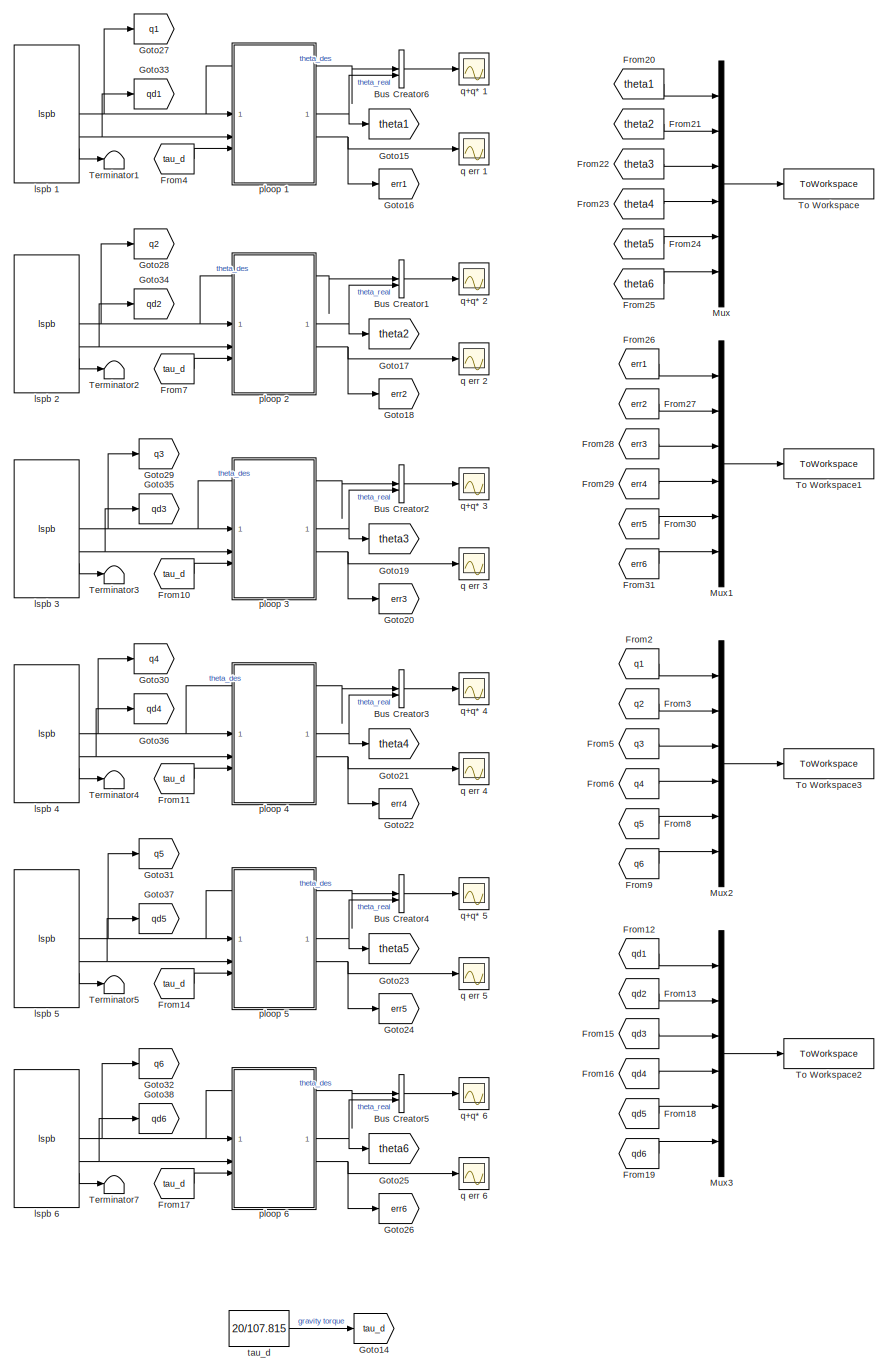
[diagram: root canvas - part 1/1, most of the canvas]
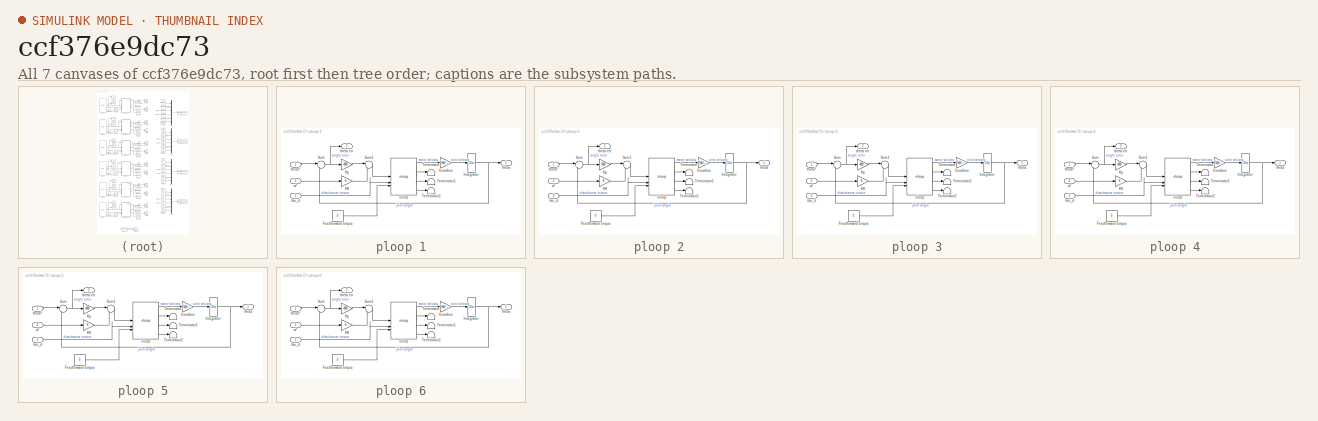
[diagram: thumbnail index - all 7 canvases of the model, root first then tree order]
MODEL slx_ccf376e9dc73
KIND model
CONFIG AbsTol = auto
CONFIG EnableMultiTasking = on
CONFIG FixedStep = auto
CONFIG MaxStep = auto
CONFIG MinStep = auto
CONFIG RelTol = 1e-3
CONFIG SampleTimeConstraint = Unconstrained
CONFIG SolverName = ode15s
CONFIG StartTime = 0.0
CONFIG StopTime = 5
BLOCK [BusCreator] Bus Creator1
  DisplayOption = bar
  InheritFromInputs = on
  Inputs = 2
BLOCK [BusCreator] Bus Creator2
  DisplayOption = bar
  InheritFromInputs = on
  Inputs = 2
BLOCK [BusCreator] Bus Creator3
  DisplayOption = bar
  InheritFromInputs = on
  Inputs = 2
BLOCK [BusCreator] Bus Creator4
  DisplayOption = bar
  InheritFromInputs = on
  Inputs = 2
BLOCK [BusCreator] Bus Creator5
  DisplayOption = bar
  InheritFromInputs = on
  Inputs = 2
BLOCK [BusCreator] Bus Creator6
  DisplayOption = bar
  InheritFromInputs = on
  Inputs = 2
BLOCK [From] From10
  GotoTag = tau_d
BLOCK [From] From11
  GotoTag = tau_d
BLOCK [From] From12
  GotoTag = qd1
BLOCK [From] From13
  GotoTag = qd2
BLOCK [From] From14
  GotoTag = tau_d
BLOCK [From] From15
  GotoTag = qd3
BLOCK [From] From16
  GotoTag = qd4
BLOCK [From] From17
  GotoTag = tau_d
BLOCK [From] From18
  GotoTag = qd5
BLOCK [From] From19
  GotoTag = qd6
BLOCK [From] From2
  GotoTag = q1
BLOCK [From] From20
  GotoTag = theta1
BLOCK [From] From21
  GotoTag = theta2
BLOCK [From] From22
  GotoTag = theta3
BLOCK [From] From23
  GotoTag = theta4
BLOCK [From] From24
  GotoTag = theta5
BLOCK [From] From25
  GotoTag = theta6
BLOCK [From] From26
  GotoTag = err1
BLOCK [From] From27
  GotoTag = err2
BLOCK [From] From28
  GotoTag = err3
BLOCK [From] From29
  GotoTag = err4
BLOCK [From] From3
  GotoTag = q2
BLOCK [From] From30
  GotoTag = err5
BLOCK [From] From31
  GotoTag = err6
BLOCK [From] From4
  GotoTag = tau_d
BLOCK [From] From5
  GotoTag = q3
BLOCK [From] From6
  GotoTag = q4
BLOCK [From] From7
  GotoTag = tau_d
BLOCK [From] From8
  GotoTag = q5
BLOCK [From] From9
  GotoTag = q6
BLOCK [Goto] Goto14
  GotoTag = tau_d
BLOCK [Goto] Goto15
  GotoTag = theta1
BLOCK [Goto] Goto16
  GotoTag = err1
BLOCK [Goto] Goto17
  GotoTag = theta2
BLOCK [Goto] Goto18
  GotoTag = err2
BLOCK [Goto] Goto19
  GotoTag = theta3
BLOCK [Goto] Goto20
  GotoTag = err3
BLOCK [Goto] Goto21
  GotoTag = theta4
BLOCK [Goto] Goto22
  GotoTag = err4
BLOCK [Goto] Goto23
  GotoTag = theta5
BLOCK [Goto] Goto24
  GotoTag = err5
BLOCK [Goto] Goto25
  GotoTag = theta6
BLOCK [Goto] Goto26
  GotoTag = err6
BLOCK [Goto] Goto27
  GotoTag = q1
BLOCK [Goto] Goto28
  GotoTag = q2
BLOCK [Goto] Goto29
  GotoTag = q3
BLOCK [Goto] Goto30
  GotoTag = q4
BLOCK [Goto] Goto31
  GotoTag = q5
BLOCK [Goto] Goto32
  GotoTag = q6
BLOCK [Goto] Goto33
  GotoTag = qd1
BLOCK [Goto] Goto34
  GotoTag = qd2
BLOCK [Goto] Goto35
  GotoTag = qd3
BLOCK [Goto] Goto36
  GotoTag = qd4
BLOCK [Goto] Goto37
  GotoTag = qd5
BLOCK [Goto] Goto38
  GotoTag = qd6
BLOCK [Mux] Mux
  DisplayOption = bar
  Inputs = 6
BLOCK [Mux] Mux1
  DisplayOption = bar
  Inputs = 6
BLOCK [Mux] Mux2
  DisplayOption = bar
  Inputs = 6
BLOCK [Mux] Mux3
  DisplayOption = bar
  Inputs = 6
BLOCK [Terminator] Terminator1
BLOCK [Terminator] Terminator2
BLOCK [Terminator] Terminator3
BLOCK [Terminator] Terminator4
BLOCK [Terminator] Terminator5
BLOCK [Terminator] Terminator7
BLOCK [ToWorkspace] To Workspace
  FixptAsFi = on
  MaxDataPoints = inf
  SampleTime = -1
  SaveFormat = Timeseries
  VariableName = THETA
BLOCK [ToWorkspace] To Workspace1
  FixptAsFi = on
  MaxDataPoints = inf
  SampleTime = -1
  SaveFormat = Timeseries
  VariableName = ERR
BLOCK [ToWorkspace] To Workspace2
  FixptAsFi = on
  MaxDataPoints = inf
  SampleTime = -1
  SaveFormat = Timeseries
  VariableName = QD
BLOCK [ToWorkspace] To Workspace3
  FixptAsFi = on
  MaxDataPoints = inf
  SampleTime = -1
  SaveFormat = Timeseries
  VariableName = Q
BLOCK [Reference] lspb 1  REF=roblocks/Toolbox/lspb  (lib defined in mdl_2a292b13c81b, mdl_69400f8cfe22, +12 more)
  SourceBlock = roblocks/Toolbox/lspb
BLOCK [Reference] lspb 2  REF=roblocks/Toolbox/lspb  (lib defined in mdl_2a292b13c81b, mdl_69400f8cfe22, +12 more)
  SourceBlock = roblocks/Toolbox/lspb
BLOCK [Reference] lspb 3  REF=roblocks/Toolbox/lspb  (lib defined in mdl_2a292b13c81b, mdl_69400f8cfe22, +12 more)
  SourceBlock = roblocks/Toolbox/lspb
BLOCK [Reference] lspb 4  REF=roblocks/Toolbox/lspb  (lib defined in mdl_2a292b13c81b, mdl_69400f8cfe22, +12 more)
  SourceBlock = roblocks/Toolbox/lspb
BLOCK [Reference] lspb 5  REF=roblocks/Toolbox/lspb  (lib defined in mdl_2a292b13c81b, mdl_69400f8cfe22, +12 more)
  SourceBlock = roblocks/Toolbox/lspb
BLOCK [Reference] lspb 6  REF=roblocks/Toolbox/lspb  (lib defined in mdl_2a292b13c81b, mdl_69400f8cfe22, +12 more)
  SourceBlock = roblocks/Toolbox/lspb
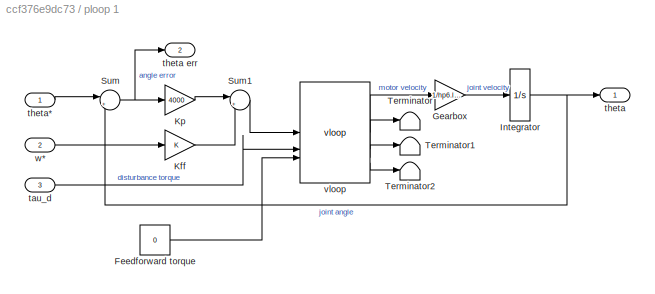
BLOCK [SubSystem] ploop 1
BLOCK [Constant] ploop 1/Feedforward torque
  Value = 0
BLOCK [Gain] ploop 1/Gearbox
  Gain = 1/hp6.links(1,1).G
BLOCK [Integrator] ploop 1/Integrator
  InitialCondition = q_start(1)
BLOCK [Gain] ploop 1/Kff
BLOCK [Gain] ploop 1/Kp
  Gain = 4000
BLOCK [Sum] ploop 1/Sum
  Inputs = |+-
BLOCK [Sum] ploop 1/Sum1
  Inputs = |++
BLOCK [Terminator] ploop 1/Terminator
BLOCK [Terminator] ploop 1/Terminator1
BLOCK [Terminator] ploop 1/Terminator2
BLOCK [Inport] ploop 1/tau_d
  Port = 3
BLOCK [Outport] ploop 1/theta
  VectorParamsAs1DForOutWhenUnconnected = off
BLOCK [Outport] ploop 1/theta err
  Port = 2
  VectorParamsAs1DForOutWhenUnconnected = off
BLOCK [Inport] ploop 1/theta*
BLOCK [Reference] ploop 1/vloop  REF=roblocks/Arm/vloop  (lib defined in mdl_2a292b13c81b, mdl_69400f8cfe22, +12 more)
  SourceBlock = roblocks/Arm/vloop
BLOCK [Inport] ploop 1/w*
  Port = 2
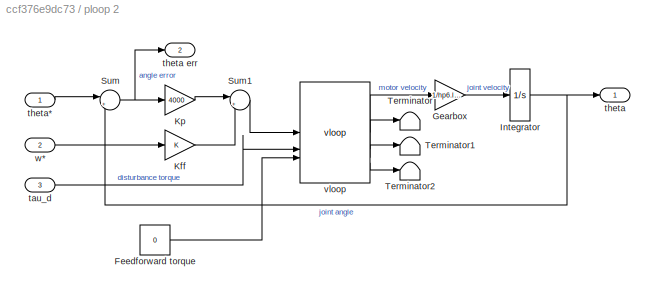
BLOCK [SubSystem] ploop 2
BLOCK [Constant] ploop 2/Feedforward torque
  Value = 0
BLOCK [Gain] ploop 2/Gearbox
  Gain = 1/hp6.links(1,2).G
BLOCK [Integrator] ploop 2/Integrator
  InitialCondition = q_start(2)
BLOCK [Gain] ploop 2/Kff
BLOCK [Gain] ploop 2/Kp
  Gain = 4000
BLOCK [Sum] ploop 2/Sum
  Inputs = |+-
BLOCK [Sum] ploop 2/Sum1
  Inputs = |++
BLOCK [Terminator] ploop 2/Terminator
BLOCK [Terminator] ploop 2/Terminator1
BLOCK [Terminator] ploop 2/Terminator2
BLOCK [Inport] ploop 2/tau_d
  Port = 3
BLOCK [Outport] ploop 2/theta
  VectorParamsAs1DForOutWhenUnconnected = off
BLOCK [Outport] ploop 2/theta err
  Port = 2
  VectorParamsAs1DForOutWhenUnconnected = off
BLOCK [Inport] ploop 2/theta*
BLOCK [Reference] ploop 2/vloop  REF=roblocks/Arm/vloop  (lib defined in mdl_2a292b13c81b, mdl_69400f8cfe22, +12 more)
  SourceBlock = roblocks/Arm/vloop
BLOCK [Inport] ploop 2/w*
  Port = 2
BLOCK [SubSystem] ploop 3
BLOCK [Constant] ploop 3/Feedforward torque
  Value = 0
BLOCK [Gain] ploop 3/Gearbox
  Gain = 1/hp6.links(1,3).G
BLOCK [Integrator] ploop 3/Integrator
  InitialCondition = q_start(3)
BLOCK [Gain] ploop 3/Kff
BLOCK [Gain] ploop 3/Kp
  Gain = 4000
BLOCK [Sum] ploop 3/Sum
  Inputs = |+-
BLOCK [Sum] ploop 3/Sum1
  Inputs = |++
BLOCK [Terminator] ploop 3/Terminator
BLOCK [Terminator] ploop 3/Terminator1
BLOCK [Terminator] ploop 3/Terminator2
BLOCK [Inport] ploop 3/tau_d
  Port = 3
BLOCK [Outport] ploop 3/theta
  VectorParamsAs1DForOutWhenUnconnected = off
BLOCK [Outport] ploop 3/theta err
  Port = 2
  VectorParamsAs1DForOutWhenUnconnected = off
BLOCK [Inport] ploop 3/theta*
BLOCK [Reference] ploop 3/vloop  REF=roblocks/Arm/vloop  (lib defined in mdl_2a292b13c81b, mdl_69400f8cfe22, +12 more)
  SourceBlock = roblocks/Arm/vloop
BLOCK [Inport] ploop 3/w*
  Port = 2
BLOCK [SubSystem] ploop 4
BLOCK [Constant] ploop 4/Feedforward torque
  Value = 0
BLOCK [Gain] ploop 4/Gearbox
  Gain = 1/hp6.links(1,4).G
BLOCK [Integrator] ploop 4/Integrator
  InitialCondition = q_start(4)
BLOCK [Gain] ploop 4/Kff
BLOCK [Gain] ploop 4/Kp
  Gain = 4000
BLOCK [Sum] ploop 4/Sum
  Inputs = |+-
BLOCK [Sum] ploop 4/Sum1
  Inputs = |++
BLOCK [Terminator] ploop 4/Terminator
BLOCK [Terminator] ploop 4/Terminator1
BLOCK [Terminator] ploop 4/Terminator2
BLOCK [Inport] ploop 4/tau_d
  Port = 3
BLOCK [Outport] ploop 4/theta
  VectorParamsAs1DForOutWhenUnconnected = off
BLOCK [Outport] ploop 4/theta err
  Port = 2
  VectorParamsAs1DForOutWhenUnconnected = off
BLOCK [Inport] ploop 4/theta*
BLOCK [Reference] ploop 4/vloop  REF=roblocks/Arm/vloop  (lib defined in mdl_2a292b13c81b, mdl_69400f8cfe22, +12 more)
  SourceBlock = roblocks/Arm/vloop
BLOCK [Inport] ploop 4/w*
  Port = 2
BLOCK [SubSystem] ploop 5
BLOCK [Constant] ploop 5/Feedforward torque
  Value = 0
BLOCK [Gain] ploop 5/Gearbox
  Gain = 1/hp6.links(1,5).G
BLOCK [Integrator] ploop 5/Integrator
  InitialCondition = q_start(5)
BLOCK [Gain] ploop 5/Kff
BLOCK [Gain] ploop 5/Kp
  Gain = 4000
BLOCK [Sum] ploop 5/Sum
  Inputs = |+-
BLOCK [Sum] ploop 5/Sum1
  Inputs = |++
BLOCK [Terminator] ploop 5/Terminator
BLOCK [Terminator] ploop 5/Terminator1
BLOCK [Terminator] ploop 5/Terminator2
BLOCK [Inport] ploop 5/tau_d
  Port = 3
BLOCK [Outport] ploop 5/theta
  VectorParamsAs1DForOutWhenUnconnected = off
BLOCK [Outport] ploop 5/theta err
  Port = 2
  VectorParamsAs1DForOutWhenUnconnected = off
BLOCK [Inport] ploop 5/theta*
BLOCK [Reference] ploop 5/vloop  REF=roblocks/Arm/vloop  (lib defined in mdl_2a292b13c81b, mdl_69400f8cfe22, +12 more)
  SourceBlock = roblocks/Arm/vloop
BLOCK [Inport] ploop 5/w*
  Port = 2
BLOCK [SubSystem] ploop 6
BLOCK [Constant] ploop 6/Feedforward torque
  Value = 0
BLOCK [Gain] ploop 6/Gearbox
  Gain = 1/hp6.links(1,6).G
BLOCK [Integrator] ploop 6/Integrator
  InitialCondition = q_start(6)
BLOCK [Gain] ploop 6/Kff
BLOCK [Gain] ploop 6/Kp
  Gain = 4000
BLOCK [Sum] ploop 6/Sum
  Inputs = |+-
BLOCK [Sum] ploop 6/Sum1
  Inputs = |++
BLOCK [Terminator] ploop 6/Terminator
BLOCK [Terminator] ploop 6/Terminator1
BLOCK [Terminator] ploop 6/Terminator2
BLOCK [Inport] ploop 6/tau_d
  Port = 3
BLOCK [Outport] ploop 6/theta
  VectorParamsAs1DForOutWhenUnconnected = off
BLOCK [Outport] ploop 6/theta err
  Port = 2
  VectorParamsAs1DForOutWhenUnconnected = off
BLOCK [Inport] ploop 6/theta*
BLOCK [Reference] ploop 6/vloop  REF=roblocks/Arm/vloop  (lib defined in mdl_2a292b13c81b, mdl_69400f8cfe22, +12 more)
  SourceBlock = roblocks/Arm/vloop
BLOCK [Inport] ploop 6/w*
  Port = 2
BLOCK [Scope] q err 1
  Floating = off
  NumInputPorts = 1
  ScopeSpecificationString = Simulink.scopes.TimeScopeBlockCfg('CurrentConfiguration', extmgr.ConfigurationSet(extmgr.Configuration('Core','General UI',true),extmgr.Configuration('Core','Source UI',true),extmgr.Configuration('Sources','WiredSimulink',true,'DataLoggingSaveFormat','StructureWithTime','DataLoggingLimitDataPoints',true,'DataLoggingDecimation','1','DataLoggingDecimateData',true,'DataLoggingVariableName','ScopeData...<+1867ch>
BLOCK [Scope] q err 2
  Floating = off
  NumInputPorts = 1
  ScopeSpecificationString = Simulink.scopes.TimeScopeBlockCfg('CurrentConfiguration', extmgr.ConfigurationSet(extmgr.Configuration('Core','General UI',true),extmgr.Configuration('Core','Source UI',true),extmgr.Configuration('Sources','WiredSimulink',true,'DataLoggingSaveFormat','StructureWithTime','DataLoggingLimitDataPoints',true,'DataLoggingDecimation','1','DataLoggingDecimateData',true,'DataLoggingVariableName','ScopeData...<+1861ch>
BLOCK [Scope] q err 3
  Floating = off
  NumInputPorts = 1
  ScopeSpecificationString = Simulink.scopes.TimeScopeBlockCfg('CurrentConfiguration', extmgr.ConfigurationSet(extmgr.Configuration('Core','General UI',true),extmgr.Configuration('Core','Source UI',true),extmgr.Configuration('Sources','WiredSimulink',true,'DataLoggingSaveFormat','StructureWithTime','DataLoggingLimitDataPoints',true,'DataLoggingDecimation','1','DataLoggingDecimateData',true,'DataLoggingVariableName','ScopeData...<+1863ch>  <repeated x3 — deduplicated; at blocks: q err 3, q err 4, q err 5>
BLOCK [Scope] q err 4
  Floating = off
  NumInputPorts = 1
BLOCK [Scope] q err 5
  Floating = off
  NumInputPorts = 1
BLOCK [Scope] q err 6
  Floating = off
  NumInputPorts = 1
  ScopeSpecificationString = Simulink.scopes.TimeScopeBlockCfg('CurrentConfiguration', extmgr.ConfigurationSet(extmgr.Configuration('Core','General UI',true),extmgr.Configuration('Core','Source UI',true),extmgr.Configuration('Sources','WiredSimulink',true,'DataLoggingSaveFormat','StructureWithTime','DataLoggingLimitDataPoints',true,'DataLoggingDecimation','1','DataLoggingDecimateData',true,'DataLoggingVariableName','ScopeData...<+1861ch>
BLOCK [Scope] q+q* 1
  Floating = off
  NumInputPorts = 1
  ScopeSpecificationString = Simulink.scopes.TimeScopeBlockCfg('CurrentConfiguration', extmgr.ConfigurationSet(extmgr.Configuration('Core','General UI',true),extmgr.Configuration('Core','Source UI',true),extmgr.Configuration('Sources','WiredSimulink',true,'DataLoggingVariableName','ScopeData7','DataLoggingSaveFormat','StructureWithTime','DataLoggingLimitDataPoints',true,'DataLoggingDecimation','1','DataLoggingDecimateData',tr...<+1771ch>
BLOCK [Scope] q+q* 2
  Floating = off
  NumInputPorts = 1
  ScopeSpecificationString = Simulink.scopes.TimeScopeBlockCfg('CurrentConfiguration', extmgr.ConfigurationSet(extmgr.Configuration('Core','General UI',true),extmgr.Configuration('Core','Source UI',true),extmgr.Configuration('Sources','WiredSimulink',true,'DataLoggingVariableName','ScopeData8','DataLoggingSaveFormat','StructureWithTime','DataLoggingLimitDataPoints',true,'DataLoggingDecimation','1','DataLoggingDecimateData',tr...<+1784ch>
BLOCK [Scope] q+q* 3
  Floating = off
  NumInputPorts = 1
  ScopeSpecificationString = Simulink.scopes.TimeScopeBlockCfg('CurrentConfiguration', extmgr.ConfigurationSet(extmgr.Configuration('Core','General UI',true),extmgr.Configuration('Core','Source UI',true),extmgr.Configuration('Sources','WiredSimulink',true,'DataLoggingVariableName','ScopeData9','DataLoggingSaveFormat','StructureWithTime','DataLoggingLimitDataPoints',true,'DataLoggingDecimation','1','DataLoggingDecimateData',tr...<+1788ch>
BLOCK [Scope] q+q* 4
  Floating = off
  NumInputPorts = 1
  ScopeSpecificationString = Simulink.scopes.TimeScopeBlockCfg('CurrentConfiguration', extmgr.ConfigurationSet(extmgr.Configuration('Core','General UI',true),extmgr.Configuration('Core','Source UI',true),extmgr.Configuration('Sources','WiredSimulink',true,'DataLoggingVariableName','ScopeData10','DataLoggingSaveFormat','StructureWithTime','DataLoggingLimitDataPoints',true,'DataLoggingDecimation','1','DataLoggingDecimateData',t...<+1793ch>
BLOCK [Scope] q+q* 5
  Floating = off
  NumInputPorts = 1
  ScopeSpecificationString = Simulink.scopes.TimeScopeBlockCfg('CurrentConfiguration', extmgr.ConfigurationSet(extmgr.Configuration('Core','General UI',true),extmgr.Configuration('Core','Source UI',true),extmgr.Configuration('Sources','WiredSimulink',true,'DataLoggingVariableName','ScopeData11','DataLoggingSaveFormat','StructureWithTime','DataLoggingLimitDataPoints',true,'DataLoggingDecimation','1','DataLoggingDecimateData',t...<+1795ch>
BLOCK [Scope] q+q* 6
  Floating = off
  NumInputPorts = 1
  ScopeSpecificationString = Simulink.scopes.TimeScopeBlockCfg('CurrentConfiguration', extmgr.ConfigurationSet(extmgr.Configuration('Core','General UI',true),extmgr.Configuration('Core','Source UI',true),extmgr.Configuration('Sources','WiredSimulink',true,'DataLoggingSaveFormat','StructureWithTime','DataLoggingLimitDataPoints',true,'DataLoggingDecimation','1','DataLoggingDecimateData',true),extmgr.Configuration('Visuals','Tim...<+1755ch>
BLOCK [Constant] tau_d
  Value = 20/107.815
LINE Bus Creator1:1 -> q+q* 2:1
LINE Bus Creator2:1 -> q+q* 3:1
LINE Bus Creator3:1 -> q+q* 4:1
LINE Bus Creator4:1 -> q+q* 5:1
LINE Bus Creator5:1 -> q+q* 6:1
LINE Bus Creator6:1 -> q+q* 1:1
LINE From10:1 -> ploop 3:3
LINE From11:1 -> ploop 4:3
LINE From12:1 -> Mux3:1
LINE From13:1 -> Mux3:2
LINE From14:1 -> ploop 5:3
LINE From15:1 -> Mux3:3
LINE From16:1 -> Mux3:4
LINE From17:1 -> ploop 6:3
LINE From18:1 -> Mux3:5
LINE From19:1 -> Mux3:6
LINE From20:1 -> Mux:1
LINE From21:1 -> Mux:2
LINE From22:1 -> Mux:3
LINE From23:1 -> Mux:4
LINE From24:1 -> Mux:5
LINE From25:1 -> Mux:6
LINE From26:1 -> Mux1:1
LINE From27:1 -> Mux1:2
LINE From28:1 -> Mux1:3
LINE From29:1 -> Mux1:4
LINE From2:1 -> Mux2:1
LINE From30:1 -> Mux1:5
LINE From31:1 -> Mux1:6
LINE From3:1 -> Mux2:2
LINE From4:1 -> ploop 1:3
LINE From5:1 -> Mux2:3
LINE From6:1 -> Mux2:4
LINE From7:1 -> ploop 2:3
LINE From8:1 -> Mux2:5
LINE From9:1 -> Mux2:6
LINE Mux1:1 -> To Workspace1:1
LINE Mux2:1 -> To Workspace3:1
LINE Mux3:1 -> To Workspace2:1
LINE Mux:1 -> To Workspace:1
NET lspb 1:1 -> Bus Creator6:1, Goto27:1, ploop 1:1
NET lspb 1:2 -> Goto33:1, ploop 1:2
LINE lspb 1:3 -> Terminator1:1
NET lspb 2:1 -> Bus Creator1:1, Goto28:1, ploop 2:1
NET lspb 2:2 -> Goto34:1, ploop 2:2
LINE lspb 2:3 -> Terminator2:1
NET lspb 3:1 -> Bus Creator2:1, Goto29:1, ploop 3:1
NET lspb 3:2 -> Goto35:1, ploop 3:2
LINE lspb 3:3 -> Terminator3:1
NET lspb 4:1 -> Bus Creator3:1, Goto30:1, ploop 4:1
NET lspb 4:2 -> Goto36:1, ploop 4:2
LINE lspb 4:3 -> Terminator4:1
NET lspb 5:1 -> Bus Creator4:1, Goto31:1, ploop 5:1
NET lspb 5:2 -> Goto37:1, ploop 5:2
LINE lspb 5:3 -> Terminator5:1
NET lspb 6:1 -> Bus Creator5:1, Goto32:1, ploop 6:1
NET lspb 6:2 -> Goto38:1, ploop 6:2
LINE lspb 6:3 -> Terminator7:1
LINE ploop 1/Feedforward torque:1 -> ploop 1/vloop:3
LINE ploop 1/Gearbox:1 -> ploop 1/Integrator:1
NET ploop 1/Integrator:1 -> ploop 1/Sum:2, ploop 1/theta:1
LINE ploop 1/Kff:1 -> ploop 1/Sum1:2
LINE ploop 1/Kp:1 -> ploop 1/Sum1:1
LINE ploop 1/Sum1:1 -> ploop 1/vloop:1
NET ploop 1/Sum:1 -> ploop 1/Kp:1, ploop 1/theta err:1
LINE ploop 1/tau_d:1 -> ploop 1/vloop:2
LINE ploop 1/theta*:1 -> ploop 1/Sum:1
LINE ploop 1/vloop:1 -> ploop 1/Gearbox:1
LINE ploop 1/vloop:2 -> ploop 1/Terminator:1
LINE ploop 1/vloop:3 -> ploop 1/Terminator1:1
LINE ploop 1/vloop:4 -> ploop 1/Terminator2:1
LINE ploop 1/w*:1 -> ploop 1/Kff:1
NET ploop 1:1 -> Bus Creator6:2, Goto15:1
NET ploop 1:2 -> Goto16:1, q err 1:1
LINE ploop 2/Feedforward torque:1 -> ploop 2/vloop:3
LINE ploop 2/Gearbox:1 -> ploop 2/Integrator:1
NET ploop 2/Integrator:1 -> ploop 2/Sum:2, ploop 2/theta:1
LINE ploop 2/Kff:1 -> ploop 2/Sum1:2
LINE ploop 2/Kp:1 -> ploop 2/Sum1:1
LINE ploop 2/Sum1:1 -> ploop 2/vloop:1
NET ploop 2/Sum:1 -> ploop 2/Kp:1, ploop 2/theta err:1
LINE ploop 2/tau_d:1 -> ploop 2/vloop:2
LINE ploop 2/theta*:1 -> ploop 2/Sum:1
LINE ploop 2/vloop:1 -> ploop 2/Gearbox:1
LINE ploop 2/vloop:2 -> ploop 2/Terminator:1
LINE ploop 2/vloop:3 -> ploop 2/Terminator1:1
LINE ploop 2/vloop:4 -> ploop 2/Terminator2:1
LINE ploop 2/w*:1 -> ploop 2/Kff:1
NET ploop 2:1 -> Bus Creator1:2, Goto17:1
NET ploop 2:2 -> Goto18:1, q err 2:1
LINE ploop 3/Feedforward torque:1 -> ploop 3/vloop:3
LINE ploop 3/Gearbox:1 -> ploop 3/Integrator:1
NET ploop 3/Integrator:1 -> ploop 3/Sum:2, ploop 3/theta:1
LINE ploop 3/Kff:1 -> ploop 3/Sum1:2
LINE ploop 3/Kp:1 -> ploop 3/Sum1:1
LINE ploop 3/Sum1:1 -> ploop 3/vloop:1
NET ploop 3/Sum:1 -> ploop 3/Kp:1, ploop 3/theta err:1
LINE ploop 3/tau_d:1 -> ploop 3/vloop:2
LINE ploop 3/theta*:1 -> ploop 3/Sum:1
LINE ploop 3/vloop:1 -> ploop 3/Gearbox:1
LINE ploop 3/vloop:2 -> ploop 3/Terminator:1
LINE ploop 3/vloop:3 -> ploop 3/Terminator1:1
LINE ploop 3/vloop:4 -> ploop 3/Terminator2:1
LINE ploop 3/w*:1 -> ploop 3/Kff:1
NET ploop 3:1 -> Bus Creator2:2, Goto19:1
NET ploop 3:2 -> Goto20:1, q err 3:1
LINE ploop 4/Feedforward torque:1 -> ploop 4/vloop:3
LINE ploop 4/Gearbox:1 -> ploop 4/Integrator:1
NET ploop 4/Integrator:1 -> ploop 4/Sum:2, ploop 4/theta:1
LINE ploop 4/Kff:1 -> ploop 4/Sum1:2
LINE ploop 4/Kp:1 -> ploop 4/Sum1:1
LINE ploop 4/Sum1:1 -> ploop 4/vloop:1
NET ploop 4/Sum:1 -> ploop 4/Kp:1, ploop 4/theta err:1
LINE ploop 4/tau_d:1 -> ploop 4/vloop:2
LINE ploop 4/theta*:1 -> ploop 4/Sum:1
LINE ploop 4/vloop:1 -> ploop 4/Gearbox:1
LINE ploop 4/vloop:2 -> ploop 4/Terminator:1
LINE ploop 4/vloop:3 -> ploop 4/Terminator1:1
LINE ploop 4/vloop:4 -> ploop 4/Terminator2:1
LINE ploop 4/w*:1 -> ploop 4/Kff:1
NET ploop 4:1 -> Bus Creator3:2, Goto21:1
NET ploop 4:2 -> Goto22:1, q err 4:1
LINE ploop 5/Feedforward torque:1 -> ploop 5/vloop:3
LINE ploop 5/Gearbox:1 -> ploop 5/Integrator:1
NET ploop 5/Integrator:1 -> ploop 5/Sum:2, ploop 5/theta:1
LINE ploop 5/Kff:1 -> ploop 5/Sum1:2
LINE ploop 5/Kp:1 -> ploop 5/Sum1:1
LINE ploop 5/Sum1:1 -> ploop 5/vloop:1
NET ploop 5/Sum:1 -> ploop 5/Kp:1, ploop 5/theta err:1
LINE ploop 5/tau_d:1 -> ploop 5/vloop:2
LINE ploop 5/theta*:1 -> ploop 5/Sum:1
LINE ploop 5/vloop:1 -> ploop 5/Gearbox:1
LINE ploop 5/vloop:2 -> ploop 5/Terminator:1
LINE ploop 5/vloop:3 -> ploop 5/Terminator1:1
LINE ploop 5/vloop:4 -> ploop 5/Terminator2:1
LINE ploop 5/w*:1 -> ploop 5/Kff:1
NET ploop 5:1 -> Bus Creator4:2, Goto23:1
NET ploop 5:2 -> Goto24:1, q err 5:1
LINE ploop 6/Feedforward torque:1 -> ploop 6/vloop:3
LINE ploop 6/Gearbox:1 -> ploop 6/Integrator:1
NET ploop 6/Integrator:1 -> ploop 6/Sum:2, ploop 6/theta:1
LINE ploop 6/Kff:1 -> ploop 6/Sum1:2
LINE ploop 6/Kp:1 -> ploop 6/Sum1:1
LINE ploop 6/Sum1:1 -> ploop 6/vloop:1
NET ploop 6/Sum:1 -> ploop 6/Kp:1, ploop 6/theta err:1
LINE ploop 6/tau_d:1 -> ploop 6/vloop:2
LINE ploop 6/theta*:1 -> ploop 6/Sum:1
LINE ploop 6/vloop:1 -> ploop 6/Gearbox:1
LINE ploop 6/vloop:2 -> ploop 6/Terminator:1
LINE ploop 6/vloop:3 -> ploop 6/Terminator1:1
LINE ploop 6/vloop:4 -> ploop 6/Terminator2:1
LINE ploop 6/w*:1 -> ploop 6/Kff:1
NET ploop 6:1 -> Bus Creator5:2, Goto25:1
NET ploop 6:2 -> Goto26:1, q err 6:1
LINE tau_d:1 -> Goto14:1
note: NET lines group one-source signal fan-out (src -> all destinations, sorted); 1:1 wires keep LINE
